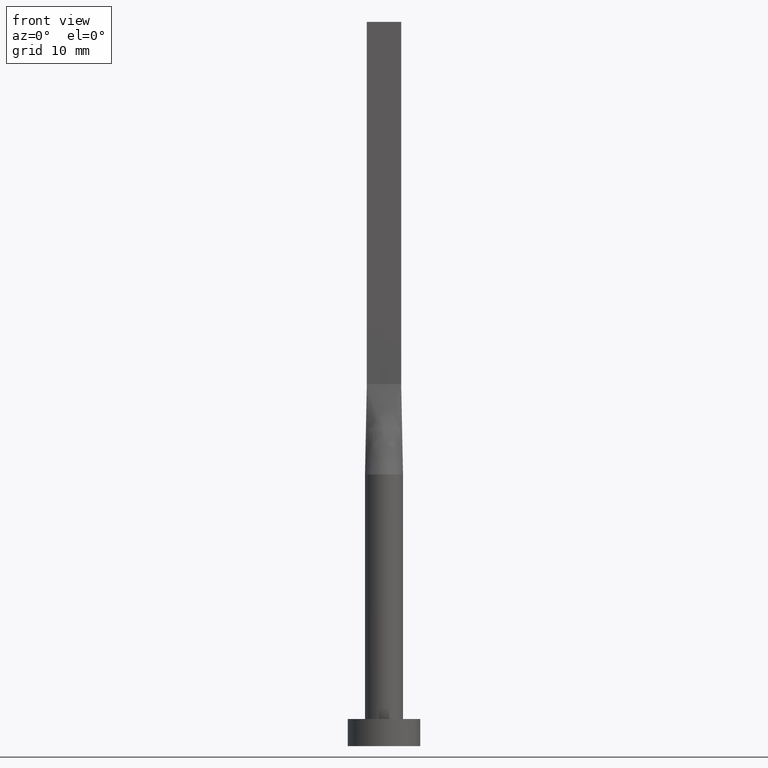
[diagram: clean part render]
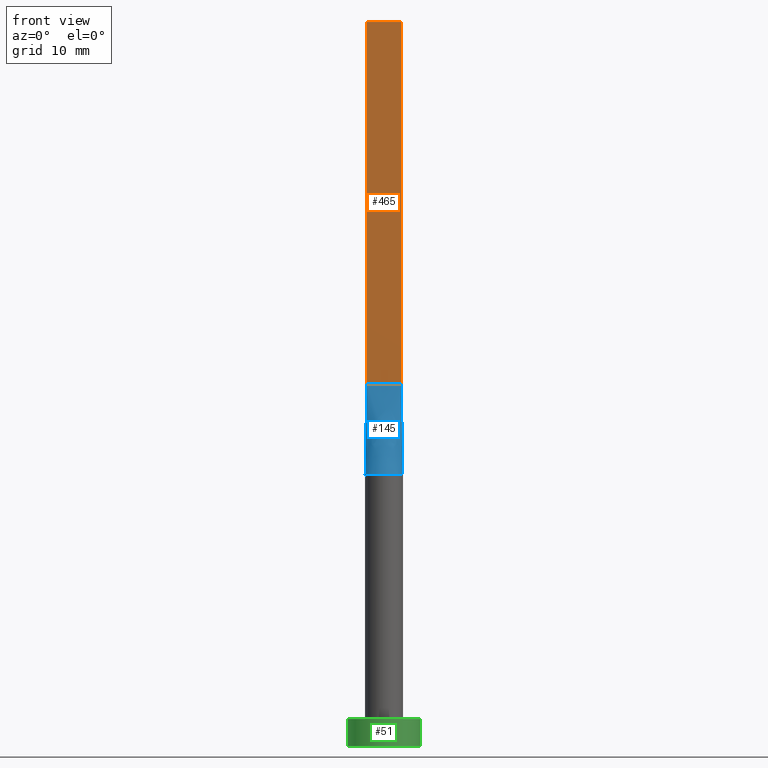
[diagram: same view with three faces highlighted in distinct colors, each labeled with its STEP entity id]
A machine part, front view with three faces highlighted in distinct colors.
Their STEP definitions:

[orange] entity #465 — the highlighted planar face has unit normal (0, 1, -0).
#9 = DIRECTION ( 'NONE',  ( -0.000000000000000000, -0.000000000000000000, -1.000000000000000000 ) ) ;
#12 = DIRECTION ( 'NONE',  ( 7.132909029509899409E-17, 1.000000000000000000, -0.000000000000000000 ) ) ;
#15 = CARTESIAN_POINT ( 'NONE',  ( -1.899999999999999911, -0.2999999999999994893, 40.00000000000000000 ) ) ;
#24 = ORIENTED_EDGE ( 'NONE', *, *, #220, .T. ) ;
#39 = DIRECTION ( 'NONE',  ( -0.000000000000000000, -0.000000000000000000, -1.000000000000000000 ) ) ;
#46 = AXIS2_PLACEMENT_3D ( 'NONE', #100, #12, #193 ) ;
#55 = CARTESIAN_POINT ( 'NONE',  ( -1.899999999999999911, -0.2999999999999994893, 40.00000000000000000 ) ) ;
#63 = EDGE_CURVE ( 'NONE', #450, #117, #448, .T. ) ;
#91 = CARTESIAN_POINT ( 'NONE',  ( 1.899999999999999023, -0.2999999999999997669, 80.00000000000000000 ) ) ;
#100 = CARTESIAN_POINT ( 'NONE',  ( -1.899999999999999911, -0.2999999999999994893, 80.00000000000000000 ) ) ;
#117 = VERTEX_POINT ( 'NONE', #407 ) ;
#119 = VERTEX_POINT ( 'NONE', #537 ) ;
#130 = CARTESIAN_POINT ( 'NONE',  ( -1.899999999999999911, -0.2999999999999994893, 80.00000000000000000 ) ) ;
#161 = VECTOR ( 'NONE', #502, 1000.000000000000000 ) ;
#193 = DIRECTION ( 'NONE',  ( -1.000000000000000000, 7.132909029509899409E-17, 0.000000000000000000 ) ) ;
#209 = ORIENTED_EDGE ( 'NONE', *, *, #63, .F. ) ;
#220 = EDGE_CURVE ( 'NONE', #464, #117, #382, .T. ) ;
#237 = PLANE ( 'NONE',  #46 ) ;
#285 = LINE ( 'NONE', #510, #328 ) ;
#295 = ORIENTED_EDGE ( 'NONE', *, *, #420, .T. ) ;
#306 = EDGE_LOOP ( 'NONE', ( #24, #209, #566, #295 ) ) ;
#311 = DIRECTION ( 'NONE',  ( 1.000000000000000000, -7.132909029509899409E-17, 0.000000000000000000 ) ) ;
#322 = FACE_OUTER_BOUND ( 'NONE', #306, .T. ) ;
#328 = VECTOR ( 'NONE', #9, 1000.000000000000000 ) ;
#366 = VECTOR ( 'NONE', #39, 1000.000000000000000 ) ;
#382 = LINE ( 'NONE', #15, #161 ) ;
#394 = VECTOR ( 'NONE', #311, 1000.000000000000000 ) ;
#407 = CARTESIAN_POINT ( 'NONE',  ( 1.899999999999999023, -0.2999999999999997669, 40.00000000000000000 ) ) ;
#415 = CARTESIAN_POINT ( 'NONE',  ( 1.899999999999999023, -0.2999999999999997669, 80.00000000000000000 ) ) ;
#420 = EDGE_CURVE ( 'NONE', #119, #464, #285, .T. ) ;
#448 = LINE ( 'NONE', #91, #366 ) ;
#450 = VERTEX_POINT ( 'NONE', #415 ) ;
#464 = VERTEX_POINT ( 'NONE', #55 ) ;
#465 = ADVANCED_FACE ( 'NONE', ( #322 ), #237, .F. ) ;
#502 = DIRECTION ( 'NONE',  ( 1.000000000000000000, -7.132909029509898176E-17, 0.000000000000000000 ) ) ;
#510 = CARTESIAN_POINT ( 'NONE',  ( -1.899999999999999911, -0.2999999999999994893, 80.00000000000000000 ) ) ;
#537 = CARTESIAN_POINT ( 'NONE',  ( -1.899999999999999911, -0.2999999999999994893, 80.00000000000000000 ) ) ;
#539 = LINE ( 'NONE', #130, #394 ) ;
#566 = ORIENTED_EDGE ( 'NONE', *, *, #578, .F. ) ;
#578 = EDGE_CURVE ( 'NONE', #119, #450, #539, .T. ) ;

[blue] entity #145 — the highlighted face is a freeform B-spline surface patch.
#8 = CARTESIAN_POINT ( 'NONE',  ( -0.5970064165420509994, -2.033566071616262239, 30.00000000000000711 ) ) ;
#10 = CARTESIAN_POINT ( 'NONE',  ( 1.119115561862284114, -1.799829988698610883, 30.00000000000000000 ) ) ;
#13 = CARTESIAN_POINT ( 'NONE',  ( 0.3166666666666672625, -0.2999999999999996003, 39.99999999999999289 ) ) ;
#15 = CARTESIAN_POINT ( 'NONE',  ( -1.899999999999999911, -0.2999999999999994893, 40.00000000000000000 ) ) ;
#23 = EDGE_CURVE ( 'NONE', #389, #117, #489, .T. ) ;
#27 = ORIENTED_EDGE ( 'NONE', *, *, #543, .T. ) ;
#42 = CARTESIAN_POINT ( 'NONE',  ( -1.899999999999999911, -0.2999999999999994893, 40.00000000000000000 ) ) ;
#55 = CARTESIAN_POINT ( 'NONE',  ( -1.899999999999999911, -0.2999999999999994893, 40.00000000000000000 ) ) ;
#56 = CARTESIAN_POINT ( 'NONE',  ( 1.266666666666665941, -0.2999999999999997113, 39.99999999999999289 ) ) ;
#59 = CARTESIAN_POINT ( 'NONE',  ( -1.342614810400548864, -1.634425746458369355, 30.00000000000000355 ) ) ;
#64 = CARTESIAN_POINT ( 'NONE',  ( 0.2990728642939452508, -2.100000000000000533, 30.00000000000001776 ) ) ;
#71 = CIRCLE ( 'NONE', #479, 2.100000000000000089 ) ;
#89 = CARTESIAN_POINT ( 'NONE',  ( -2.074302227191044956, -0.3275214042933223824, 30.00000000000000000 ) ) ;
#96 = CARTESIAN_POINT ( 'NONE',  ( -1.583333333333333037, -0.2999999999999994893, 40.00000000000000000 ) ) ;
#98 = CARTESIAN_POINT ( 'NONE',  ( -0.2990728642939464721, -2.100000000000000977, 30.00000000000001421 ) ) ;
#102 = CARTESIAN_POINT ( 'NONE',  ( -0.1583333333333324378, -0.2999999999999996003, 40.00000000000000000 ) ) ;
#117 = VERTEX_POINT ( 'NONE', #407 ) ;
#144 = CARTESIAN_POINT ( 'NONE',  ( 2.074302227191044956, -0.3275214042933231595, 30.00000000000000000 ) ) ;
#145 = ADVANCED_FACE ( 'NONE', ( #485 ), #434, .T. ) ;
#147 = DIRECTION ( 'NONE',  ( 1.000000000000000000, 0.000000000000000000, 0.000000000000000000 ) ) ;
#148 = CARTESIAN_POINT ( 'NONE',  ( 1.899999999999999023, -0.2999999999999997669, 40.00000000000000000 ) ) ;
#156 = LINE ( 'NONE', #160, #507 ) ;
#160 = CARTESIAN_POINT ( 'NONE',  ( -1.987151113595522656, -0.3137607021466609636, 35.00000000000000000 ) ) ;
#161 = VECTOR ( 'NONE', #502, 1000.000000000000000 ) ;
#171 = ORIENTED_EDGE ( 'NONE', *, *, #456, .T. ) ;
#173 = DIRECTION ( 'NONE',  ( -0.01742750958084847077, 0.002751712039081371727, 0.9998443428807622935 ) ) ;
#182 = CARTESIAN_POINT ( 'NONE',  ( 2.074492141291045755, -0.3275508996892426139, 30.00000000000000000 ) ) ;
#187 = CARTESIAN_POINT ( 'NONE',  ( -1.119115561862284558, -1.799829988698610439, 30.00000000000000355 ) ) ;
#189 = CARTESIAN_POINT ( 'NONE',  ( 0.6333333333333335258, -0.2999999999999996003, 39.99999999999999289 ) ) ;
#210 = CARTESIAN_POINT ( 'NONE',  ( -2.074486960997361962, -0.3275502116714910095, 30.00000000000000000 ) ) ;
#218 = CARTESIAN_POINT ( 'NONE',  ( 1.987151113595522212, -0.3137607021466614632, 35.00000000000000000 ) ) ;
#220 = EDGE_CURVE ( 'NONE', #464, #117, #382, .T. ) ;
#232 = CARTESIAN_POINT ( 'NONE',  ( -1.266666666666666385, -0.2999999999999994893, 39.99999999999999289 ) ) ;
#234 = CARTESIAN_POINT ( 'NONE',  ( -0.6333333333333327486, -0.2999999999999996003, 39.99999999999999289 ) ) ;
#238 = CARTESIAN_POINT ( 'NONE',  ( 0.1583333333333341031, -0.2999999999999996003, 39.99999999999999289 ) ) ;
#276 = CARTESIAN_POINT ( 'NONE',  ( 1.692271541701912962, -1.268928319070363520, 30.00000000000002132 ) ) ;
#279 = CARTESIAN_POINT ( 'NONE',  ( -0.3166666666666658192, -0.2999999999999996003, 39.99999999999999289 ) ) ;
#282 = VECTOR ( 'NONE', #173, 1000.000000000000114 ) ;
#283 = CARTESIAN_POINT ( 'NONE',  ( -2.047342767731585411, -0.4982646475365654637, 29.99999999999999645 ) ) ;
#320 = CARTESIAN_POINT ( 'NONE',  ( 1.996565546919328415, -0.6845950695482654336, 30.00000000000001066 ) ) ;
#323 = CARTESIAN_POINT ( 'NONE',  ( -1.996565546919327971, -0.6845950695482642123, 30.00000000000000355 ) ) ;
#334 = DIRECTION ( 'NONE',  ( -0.01742750958084838056, -0.002751712039081322721, -0.9998443428807622935 ) ) ;
#367 = CARTESIAN_POINT ( 'NONE',  ( 1.108333333333332948, -0.2999999999999996558, 39.99999999999999289 ) ) ;
#369 = CARTESIAN_POINT ( 'NONE',  ( 1.342614810400548864, -1.634425746458370021, 30.00000000000000355 ) ) ;
#382 = LINE ( 'NONE', #15, #161 ) ;
#389 = VERTEX_POINT ( 'NONE', #182 ) ;
#407 = CARTESIAN_POINT ( 'NONE',  ( 1.899999999999999023, -0.2999999999999997669, 40.00000000000000000 ) ) ;
#410 = CARTESIAN_POINT ( 'NONE',  ( -1.692271541701912296, -1.268928319070361965, 30.00000000000000711 ) ) ;
#413 = CARTESIAN_POINT ( 'NONE',  ( 0.5970064165420505553, -2.033566071616262683, 30.00000000000000711 ) ) ;
#416 = CARTESIAN_POINT ( 'NONE',  ( -1.741666666666666474, -0.2999999999999994893, 40.00000000000000000 ) ) ;
#434 = B_SPLINE_SURFACE_WITH_KNOTS ( 'NONE', 3, 1, ( 
 ( #89, #42 ),
 ( #283, #416 ),
 ( #323, #96 ),
 ( #460, #232 ),
 ( #410, #457 ),
 ( #59, #501 ),
 ( #187, #234 ),
 ( #8, #279 ),
 ( #98, #102 ),
 ( #64, #238 ),
 ( #413, #13 ),
 ( #10, #189 ),
 ( #369, #498 ),
 ( #276, #367 ),
 ( #454, #56 ),
 ( #320, #550 ),
 ( #504, #547 ),
 ( #144, #148 ) ),
 .UNSPECIFIED., .F., .F., .F.,
 ( 4, 2, 2, 2, 2, 2, 2, 2, 4 ),
 ( 2, 2 ),
 ( 0.000000000000000000, 0.1249999999999999445, 0.2499999999999999445, 0.3749999999999999445, 0.5000000000000000000, 0.6249999999999998890, 0.7499999999999998890, 0.8749999999999997780, 1.000000000000000000 ),
 ( 0.000000000000000000, 1.000000000000000000 ),
 .UNSPECIFIED. ) ;
#438 = ORIENTED_EDGE ( 'NONE', *, *, #23, .T. ) ;
#454 = CARTESIAN_POINT ( 'NONE',  ( 1.819451111325472104, -1.069832718648842107, 30.00000000000000711 ) ) ;
#456 = EDGE_CURVE ( 'NONE', #571, #389, #71, .T. ) ;
#457 = CARTESIAN_POINT ( 'NONE',  ( -1.108333333333332948, -0.2999999999999994893, 39.99999999999999289 ) ) ;
#460 = CARTESIAN_POINT ( 'NONE',  ( -1.819451111325472548, -1.069832718648841663, 30.00000000000001066 ) ) ;
#463 = CARTESIAN_POINT ( 'NONE',  ( 0.000000000000000000, 0.000000000000000000, 30.00000000000000000 ) ) ;
#464 = VERTEX_POINT ( 'NONE', #55 ) ;
#479 = AXIS2_PLACEMENT_3D ( 'NONE', #463, #542, #147 ) ;
#485 = FACE_OUTER_BOUND ( 'NONE', #529, .T. ) ;
#489 = LINE ( 'NONE', #218, #282 ) ;
#498 = CARTESIAN_POINT ( 'NONE',  ( 0.7916666666666667407, -0.2999999999999996003, 39.99999999999999289 ) ) ;
#501 = CARTESIAN_POINT ( 'NONE',  ( -0.7916666666666660745, -0.2999999999999995448, 39.99999999999999289 ) ) ;
#502 = DIRECTION ( 'NONE',  ( 1.000000000000000000, -7.132909029509898176E-17, 0.000000000000000000 ) ) ;
#504 = CARTESIAN_POINT ( 'NONE',  ( 2.047342767731585855, -0.4982646475365661298, 30.00000000000000711 ) ) ;
#507 = VECTOR ( 'NONE', #334, 1000.000000000000114 ) ;
#529 = EDGE_LOOP ( 'NONE', ( #171, #438, #551, #27 ) ) ;
#542 = DIRECTION ( 'NONE',  ( 0.000000000000000000, 0.000000000000000000, 1.000000000000000000 ) ) ;
#543 = EDGE_CURVE ( 'NONE', #464, #571, #156, .T. ) ;
#547 = CARTESIAN_POINT ( 'NONE',  ( 1.741666666666665586, -0.2999999999999997113, 39.99999999999999289 ) ) ;
#550 = CARTESIAN_POINT ( 'NONE',  ( 1.583333333333332371, -0.2999999999999997113, 39.99999999999999289 ) ) ;
#551 = ORIENTED_EDGE ( 'NONE', *, *, #220, .F. ) ;
#571 = VERTEX_POINT ( 'NONE', #210 ) ;

[green] entity #51 — the highlighted cylindrical surface (edge-blend (fillet) strip) has radius 4 mm, axis along (-0, -0, -1).
#3 = FACE_OUTER_BOUND ( 'NONE', #342, .T. ) ;
#6 = LINE ( 'NONE', #216, #61 ) ;
#51 = ADVANCED_FACE ( 'NONE', ( #3 ), #532, .T. ) ;
#61 = VECTOR ( 'NONE', #219, 1000.000000000000000 ) ;
#88 = EDGE_CURVE ( 'NONE', #538, #225, #6, .T. ) ;
#118 = DIRECTION ( 'NONE',  ( 1.000000000000000000, 0.000000000000000000, 0.000000000000000000 ) ) ;
#133 = VERTEX_POINT ( 'NONE', #405 ) ;
#146 = CARTESIAN_POINT ( 'NONE',  ( -4.000000000000000000, 0.000000000000000000, 3.000000000000000000 ) ) ;
#149 = ORIENTED_EDGE ( 'NONE', *, *, #88, .F. ) ;
#154 = DIRECTION ( 'NONE',  ( 1.000000000000000000, 0.000000000000000000, 0.000000000000000000 ) ) ;
#170 = AXIS2_PLACEMENT_3D ( 'NONE', #248, #203, #118 ) ;
#180 = CARTESIAN_POINT ( 'NONE',  ( 4.000000000000000000, 4.898587196589412829E-16, 0.000000000000000000 ) ) ;
#198 = AXIS2_PLACEMENT_3D ( 'NONE', #503, #332, #154 ) ;
#203 = DIRECTION ( 'NONE',  ( 0.000000000000000000, 0.000000000000000000, 1.000000000000000000 ) ) ;
#211 = EDGE_CURVE ( 'NONE', #133, #436, #336, .T. ) ;
#213 = CIRCLE ( 'NONE', #198, 4.000000000000000000 ) ;
#216 = CARTESIAN_POINT ( 'NONE',  ( 4.000000000000000000, 4.898587196589412829E-16, 3.000000000000000000 ) ) ;
#219 = DIRECTION ( 'NONE',  ( -0.000000000000000000, -0.000000000000000000, -1.000000000000000000 ) ) ;
#225 = VERTEX_POINT ( 'NONE', #180 ) ;
#228 = CARTESIAN_POINT ( 'NONE',  ( 0.000000000000000000, 0.000000000000000000, 3.000000000000000000 ) ) ;
#245 = AXIS2_PLACEMENT_3D ( 'NONE', #228, #400, #494 ) ;
#248 = CARTESIAN_POINT ( 'NONE',  ( 0.000000000000000000, 0.000000000000000000, 0.000000000000000000 ) ) ;
#299 = ORIENTED_EDGE ( 'NONE', *, *, #491, .T. ) ;
#304 = ORIENTED_EDGE ( 'NONE', *, *, #211, .T. ) ;
#332 = DIRECTION ( 'NONE',  ( 0.000000000000000000, 0.000000000000000000, 1.000000000000000000 ) ) ;
#336 = LINE ( 'NONE', #146, #581 ) ;
#342 = EDGE_LOOP ( 'NONE', ( #149, #517, #304, #299 ) ) ;
#360 = EDGE_CURVE ( 'NONE', #133, #538, #213, .T. ) ;
#400 = DIRECTION ( 'NONE',  ( -0.000000000000000000, -0.000000000000000000, -1.000000000000000000 ) ) ;
#404 = CIRCLE ( 'NONE', #170, 4.000000000000000000 ) ;
#405 = CARTESIAN_POINT ( 'NONE',  ( -4.000000000000000000, 0.000000000000000000, 3.000000000000000000 ) ) ;
#417 = DIRECTION ( 'NONE',  ( -0.000000000000000000, -0.000000000000000000, -1.000000000000000000 ) ) ;
#418 = CARTESIAN_POINT ( 'NONE',  ( -4.000000000000000000, 0.000000000000000000, 0.000000000000000000 ) ) ;
#421 = CARTESIAN_POINT ( 'NONE',  ( 4.000000000000000000, 4.898587196589412829E-16, 3.000000000000000000 ) ) ;
#436 = VERTEX_POINT ( 'NONE', #418 ) ;
#491 = EDGE_CURVE ( 'NONE', #436, #225, #404, .T. ) ;
#494 = DIRECTION ( 'NONE',  ( -1.000000000000000000, 0.000000000000000000, 0.000000000000000000 ) ) ;
#503 = CARTESIAN_POINT ( 'NONE',  ( 0.000000000000000000, 0.000000000000000000, 3.000000000000000000 ) ) ;
#517 = ORIENTED_EDGE ( 'NONE', *, *, #360, .F. ) ;
#532 = CYLINDRICAL_SURFACE ( 'NONE', #245, 4.000000000000000000 ) ;
#538 = VERTEX_POINT ( 'NONE', #421 ) ;
#581 = VECTOR ( 'NONE', #417, 1000.000000000000000 ) ;